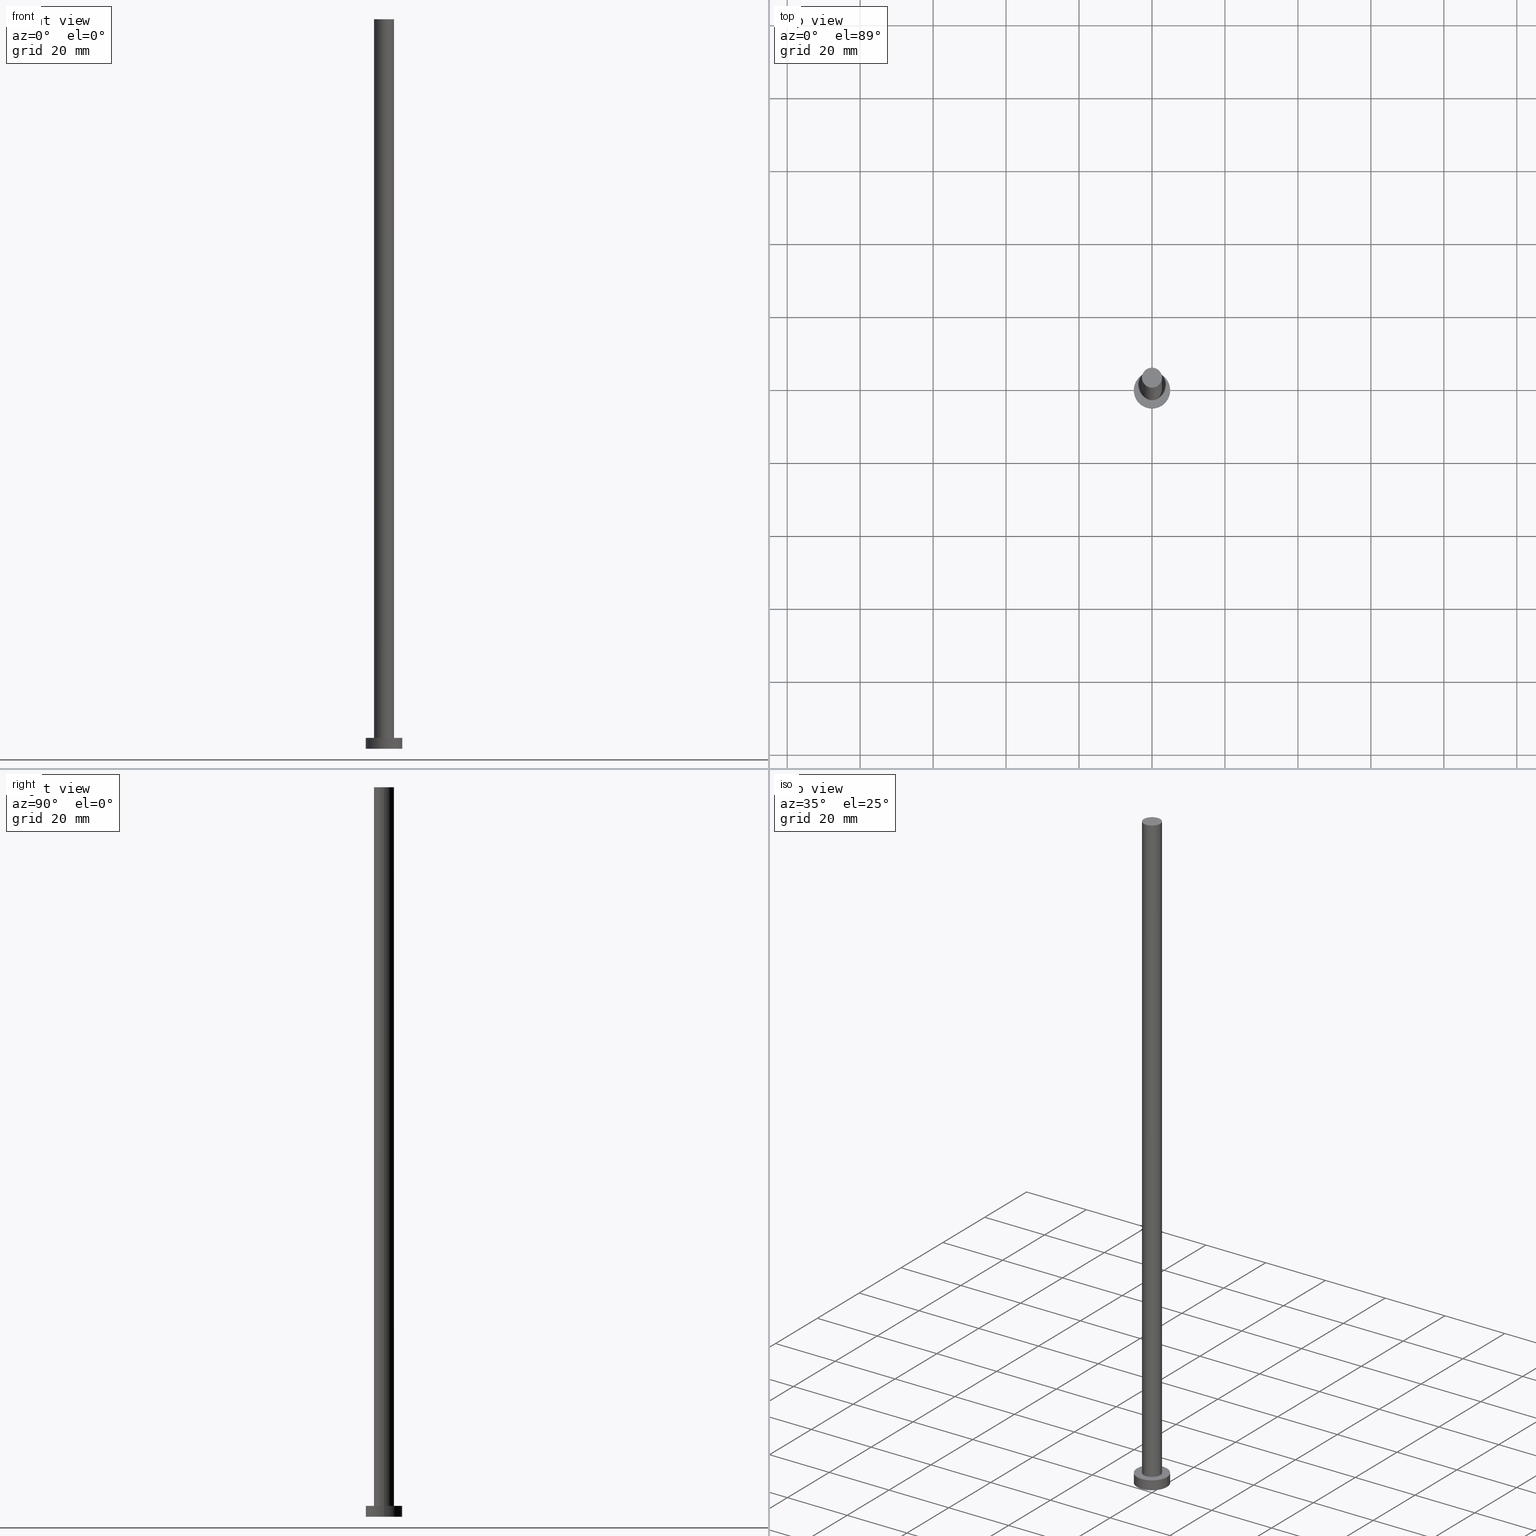
[diagram: canonical four-view strip — front | top / right | iso, engineering-drawing reading convention]
A machine part, canonical four-view strip (front | top / right | iso — engineering-drawing reading convention). The complete STEP part file that produces these views, byte-faithful:
ISO-10303-21;
HEADER;
FILE_DESCRIPTION (( 'STEP AP203' ),
    '1' );
FILE_NAME ('29d3.STEP',
    '2023-02-13T14:33:51',
    ( '' ),
    ( '' ),
    'SwSTEP 2.0',
    'SolidWorks 2019',
    '' );
FILE_SCHEMA (( 'CONFIG_CONTROL_DESIGN' ));
ENDSEC;

DATA;
#1 = AXIS2_PLACEMENT_3D ( 'NONE', #63, #211, #60 ) ;
#2 = EDGE_CURVE ( 'NONE', #146, #50, #151, .T. ) ;
#3 = CALENDAR_DATE ( 2023, 13, 2 ) ;
#4 = MECHANICAL_CONTEXT ( 'NONE', #82, 'mechanical' ) ;
#5 = CC_DESIGN_PERSON_AND_ORGANIZATION_ASSIGNMENT ( #142, #122, ( #239 ) ) ;
#6 = PERSON_AND_ORGANIZATION_ROLE ( 'design_owner' ) ;
#7 = CALENDAR_DATE ( 2023, 13, 2 ) ;
#8 = ADVANCED_FACE ( 'NONE', ( #130 ), #125, .F. ) ;
#9 = ORIENTED_EDGE ( 'NONE', *, *, #134, .T. ) ;
#10 = CARTESIAN_POINT ( 'NONE',  ( 5.000000000000000000, 6.123233995736766282E-16, 0.000000000000000000 ) ) ;
#11 = PERSON_AND_ORGANIZATION ( #64, #174 ) ;
#12 = EDGE_LOOP ( 'NONE', ( #9, #244 ) ) ;
#13 = VERTEX_POINT ( 'NONE', #36 ) ;
#14 = CC_DESIGN_APPROVAL ( #240, ( #53 ) ) ;
#15 = DATE_AND_TIME ( #248, #124 ) ;
#16 = ORIENTED_EDGE ( 'NONE', *, *, #134, .F. ) ;
#17 = CARTESIAN_POINT ( 'NONE',  ( 0.000000000000000000, 0.000000000000000000, 3.000000000000000000 ) ) ;
#18 = FACE_BOUND ( 'NONE', #171, .T. ) ;
#19 = ADVANCED_FACE ( 'NONE', ( #183 ), #202, .T. ) ;
#20 = APPROVAL_PERSON_ORGANIZATION ( #241, #228, #237 ) ;
#21 = DIRECTION ( 'NONE',  ( 0.000000000000000000, 0.000000000000000000, 1.000000000000000000 ) ) ;
#22 = LINE ( 'NONE', #212, #145 ) ;
#23 = DATE_AND_TIME ( #3, #62 ) ;
#24 = PERSON_AND_ORGANIZATION_ROLE ( 'classification_officer' ) ;
#25 = AXIS2_PLACEMENT_3D ( 'NONE', #17, #90, #235 ) ;
#26 = DATE_AND_TIME ( #48, #187 ) ;
#27 = ADVANCED_FACE ( 'NONE', ( #175 ), #73, .T. ) ;
#28 = LOCAL_TIME ( 15, 33, 51.00000000000000000, #66 ) ;
#29 = DIRECTION ( 'NONE',  ( 0.000000000000000000, 0.000000000000000000, 1.000000000000000000 ) ) ;
#30 = UNCERTAINTY_MEASURE_WITH_UNIT (LENGTH_MEASURE( 1.000000000000000082E-05 ), #217, 'distance_accuracy_value', 'NONE');
#31 = ORIENTED_EDGE ( 'NONE', *, *, #120, .F. ) ;
#32 = ORIENTED_EDGE ( 'NONE', *, *, #2, .F. ) ;
#33 = CC_DESIGN_DATE_AND_TIME_ASSIGNMENT ( #26, #104, ( #53 ) ) ;
#34 = DIRECTION ( 'NONE',  ( 0.000000000000000000, 0.000000000000000000, 1.000000000000000000 ) ) ;
#35 = ORIENTED_EDGE ( 'NONE', *, *, #221, .F. ) ;
#36 = CARTESIAN_POINT ( 'NONE',  ( -2.750000000000000000, 0.000000000000000000, 3.000000000000000000 ) ) ;
#37 = VECTOR ( 'NONE', #95, 1000.000000000000000 ) ;
#38 = LINE ( 'NONE', #193, #165 ) ;
#39 = AXIS2_PLACEMENT_3D ( 'NONE', #97, #117, #158 ) ;
#40 = MANIFOLD_SOLID_BREP ( 'P�idat vysunut�m3', #140 ) ;
#41 = DIRECTION ( 'NONE',  ( -0.000000000000000000, -0.000000000000000000, -1.000000000000000000 ) ) ;
#42 = DIRECTION ( 'NONE',  ( 1.000000000000000000, 0.000000000000000000, 0.000000000000000000 ) ) ;
#43 = DIRECTION ( 'NONE',  ( 1.000000000000000000, 0.000000000000000000, 0.000000000000000000 ) ) ;
#44 = PERSON_AND_ORGANIZATION ( #64, #174 ) ;
#45 = VECTOR ( 'NONE', #72, 1000.000000000000000 ) ;
#46 = APPROVAL_STATUS ( 'not_yet_approved' ) ;
#47 = COORDINATED_UNIVERSAL_TIME_OFFSET ( 1, 0, .AHEAD. ) ;
#48 = CALENDAR_DATE ( 2023, 13, 2 ) ;
#49 = DATE_AND_TIME ( #7, #28 ) ;
#50 = VERTEX_POINT ( 'NONE', #10 ) ;
#51 = DIRECTION ( 'NONE',  ( 1.000000000000000000, 0.000000000000000000, -0.000000000000000000 ) ) ;
#52 = VERTEX_POINT ( 'NONE', #110 ) ;
#53 = SECURITY_CLASSIFICATION ( '', '', #196 ) ;
#54 = ORIENTED_EDGE ( 'NONE', *, *, #120, .T. ) ;
#55 = CARTESIAN_POINT ( 'NONE',  ( 5.000000000000000000, 6.123233995736766282E-16, 3.000000000000000000 ) ) ;
#56 = LINE ( 'NONE', #230, #37 ) ;
#57 = AXIS2_PLACEMENT_3D ( 'NONE', #118, #21, #189 ) ;
#58 = CARTESIAN_POINT ( 'NONE',  ( -2.750000000000000000, 0.000000000000000000, 200.0000000000000000 ) ) ;
#59 = DIRECTION ( 'NONE',  ( 1.000000000000000000, 0.000000000000000000, 0.000000000000000000 ) ) ;
#60 = DIRECTION ( 'NONE',  ( -1.000000000000000000, 0.000000000000000000, 0.000000000000000000 ) ) ;
#61 = CIRCLE ( 'NONE', #112, 2.750000000000000000 ) ;
#62 = LOCAL_TIME ( 15, 33, 51.00000000000000000, #47 ) ;
#63 = CARTESIAN_POINT ( 'NONE',  ( 0.000000000000000000, 0.000000000000000000, 3.000000000000000000 ) ) ;
#64 = PERSON ( 'NEUR�EN�', 'NEUR�EN�', 'NEUR�EN�', ('NEUR�EN�'), ('NEUR�EN�'), ('NEUR�EN�') ) ;
#65 = COORDINATED_UNIVERSAL_TIME_OFFSET ( 1, 0, .AHEAD. ) ;
#66 = COORDINATED_UNIVERSAL_TIME_OFFSET ( 1, 0, .AHEAD. ) ;
#67 = PRODUCT ( '29d3', '29d3', '', ( #4 ) ) ;
#68 = CALENDAR_DATE ( 2023, 13, 2 ) ;
#69 = EDGE_CURVE ( 'NONE', #52, #87, #135, .T. ) ;
#70 = ORIENTED_EDGE ( 'NONE', *, *, #209, .F. ) ;
#71 = CARTESIAN_POINT ( 'NONE',  ( 0.000000000000000000, 0.000000000000000000, 200.0000000000000000 ) ) ;
#72 = DIRECTION ( 'NONE',  ( -0.000000000000000000, -0.000000000000000000, -1.000000000000000000 ) ) ;
#73 = CYLINDRICAL_SURFACE ( 'NONE', #245, 2.750000000000000000 ) ;
#74 = VERTEX_POINT ( 'NONE', #176 ) ;
#75 = FACE_OUTER_BOUND ( 'NONE', #12, .T. ) ;
#76 = CARTESIAN_POINT ( 'NONE',  ( 0.000000000000000000, 0.000000000000000000, 200.0000000000000000 ) ) ;
#77 = AXIS2_PLACEMENT_3D ( 'NONE', #76, #133, #78 ) ;
#78 = DIRECTION ( 'NONE',  ( -1.000000000000000000, 0.000000000000000000, 0.000000000000000000 ) ) ;
#79 = CARTESIAN_POINT ( 'NONE',  ( 0.000000000000000000, 0.000000000000000000, 200.0000000000000000 ) ) ;
#80 = PERSON_AND_ORGANIZATION ( #64, #174 ) ;
#81 = PERSON_AND_ORGANIZATION ( #64, #174 ) ;
#82 = APPLICATION_CONTEXT ( 'configuration controlled 3d designs of mechanical parts and assemblies' ) ;
#83 = ORIENTED_EDGE ( 'NONE', *, *, #69, .F. ) ;
#84 = EDGE_LOOP ( 'NONE', ( #203, #127, #227, #126 ) ) ;
#85 = ORIENTED_EDGE ( 'NONE', *, *, #197, .T. ) ;
#86 = ADVANCED_FACE ( 'NONE', ( #18, #75 ), #159, .T. ) ;
#87 = VERTEX_POINT ( 'NONE', #58 ) ;
#88 = SHAPE_DEFINITION_REPRESENTATION ( #220, #213 ) ;
#89 = ORIENTED_EDGE ( 'NONE', *, *, #221, .T. ) ;
#90 = DIRECTION ( 'NONE',  ( 0.000000000000000000, 0.000000000000000000, 1.000000000000000000 ) ) ;
#91 = APPROVAL_DATE_TIME ( #15, #240 ) ;
#92 = APPROVAL ( #46, 'NEUR�EN�' ) ;
#93 = FACE_OUTER_BOUND ( 'NONE', #168, .T. ) ;
#94 = AXIS2_PLACEMENT_3D ( 'NONE', #102, #29, #162 ) ;
#95 = DIRECTION ( 'NONE',  ( -0.000000000000000000, -0.000000000000000000, -1.000000000000000000 ) ) ;
#96 = APPROVAL_ROLE ( '' ) ;
#97 = CARTESIAN_POINT ( 'NONE',  ( 0.000000000000000000, 0.000000000000000000, 3.000000000000000000 ) ) ;
#98 = DIRECTION ( 'NONE',  ( 0.000000000000000000, 0.000000000000000000, 1.000000000000000000 ) ) ;
#99 = AXIS2_PLACEMENT_3D ( 'NONE', #249, #177, #253 ) ;
#100 = DATE_TIME_ROLE ( 'creation_date' ) ;
#101 = ADVANCED_FACE ( 'NONE', ( #93 ), #250, .T. ) ;
#102 = CARTESIAN_POINT ( 'NONE',  ( 0.000000000000000000, 0.000000000000000000, 0.000000000000000000 ) ) ;
#103 = COORDINATED_UNIVERSAL_TIME_OFFSET ( 1, 0, .AHEAD. ) ;
#104 = DATE_TIME_ROLE ( 'classification_date' ) ;
#105 = DIRECTION ( 'NONE',  ( -0.000000000000000000, -0.000000000000000000, -1.000000000000000000 ) ) ;
#106 = CIRCLE ( 'NONE', #163, 5.000000000000000000 ) ;
#107 = AXIS2_PLACEMENT_3D ( 'NONE', #191, #98, #179 ) ;
#108 = EDGE_CURVE ( 'NONE', #87, #52, #61, .T. ) ;
#109 = VERTEX_POINT ( 'NONE', #153 ) ;
#110 = CARTESIAN_POINT ( 'NONE',  ( 2.750000000000000000, 3.367778697655221012E-16, 200.0000000000000000 ) ) ;
#111 = CC_DESIGN_PERSON_AND_ORGANIZATION_ASSIGNMENT ( #80, #195, ( #144 ) ) ;
#112 = AXIS2_PLACEMENT_3D ( 'NONE', #79, #115, #42 ) ;
#113 = DIRECTION ( 'NONE',  ( 0.000000000000000000, 0.000000000000000000, 1.000000000000000000 ) ) ;
#114 = CIRCLE ( 'NONE', #39, 2.750000000000000000 ) ;
#115 = DIRECTION ( 'NONE',  ( 0.000000000000000000, 0.000000000000000000, 1.000000000000000000 ) ) ;
#116 = DIRECTION ( 'NONE',  ( 0.000000000000000000, 0.000000000000000000, 1.000000000000000000 ) ) ;
#117 = DIRECTION ( 'NONE',  ( 0.000000000000000000, 0.000000000000000000, 1.000000000000000000 ) ) ;
#118 = CARTESIAN_POINT ( 'NONE',  ( 0.000000000000000000, 0.000000000000000000, 0.000000000000000000 ) ) ;
#119 = APPROVAL_ROLE ( '' ) ;
#120 = EDGE_CURVE ( 'NONE', #52, #109, #56, .T. ) ;
#121 = PERSON_AND_ORGANIZATION ( #64, #174 ) ;
#122 = PERSON_AND_ORGANIZATION_ROLE ( 'creator' ) ;
#123 =( NAMED_UNIT ( * ) PLANE_ANGLE_UNIT ( ) SI_UNIT ( $, .RADIAN. ) );
#124 = LOCAL_TIME ( 15, 33, 51.00000000000000000, #210 ) ;
#125 = PLANE ( 'NONE',  #215 ) ;
#126 = ORIENTED_EDGE ( 'NONE', *, *, #156, .F. ) ;
#127 = ORIENTED_EDGE ( 'NONE', *, *, #2, .T. ) ;
#128 = CIRCLE ( 'NONE', #57, 5.000000000000000000 ) ;
#129 = CARTESIAN_POINT ( 'NONE',  ( 0.000000000000000000, 0.000000000000000000, 0.000000000000000000 ) ) ;
#130 = FACE_OUTER_BOUND ( 'NONE', #229, .T. ) ;
#131 = DIRECTION ( 'NONE',  ( -0.000000000000000000, -0.000000000000000000, -1.000000000000000000 ) ) ;
#132 = CYLINDRICAL_SURFACE ( 'NONE', #1, 5.000000000000000000 ) ;
#133 = DIRECTION ( 'NONE',  ( -0.000000000000000000, -0.000000000000000000, -1.000000000000000000 ) ) ;
#134 = EDGE_CURVE ( 'NONE', #243, #146, #172, .T. ) ;
#135 = CIRCLE ( 'NONE', #182, 2.750000000000000000 ) ;
#136 = DIRECTION ( 'NONE',  ( -0.000000000000000000, -0.000000000000000000, -1.000000000000000000 ) ) ;
#137 = APPROVAL_PERSON_ORGANIZATION ( #81, #92, #119 ) ;
#138 = ADVANCED_FACE ( 'NONE', ( #208 ), #194, .T. ) ;
#139 = APPROVAL_DATE_TIME ( #143, #228 ) ;
#140 = CLOSED_SHELL ( 'NONE', ( #101, #178, #138, #86, #8, #27, #19 ) ) ;
#141 = AXIS2_PLACEMENT_3D ( 'NONE', #216, #116, #43 ) ;
#142 = PERSON_AND_ORGANIZATION ( #64, #174 ) ;
#143 = DATE_AND_TIME ( #68, #200 ) ;
#144 = PRODUCT_DEFINITION ( 'NEZN�M�', '', #239, #164 ) ;
#145 = VECTOR ( 'NONE', #41, 1000.000000000000000 ) ;
#146 = VERTEX_POINT ( 'NONE', #233 ) ;
#147 = DIRECTION ( 'NONE',  ( -1.000000000000000000, 0.000000000000000000, 0.000000000000000000 ) ) ;
#148 = EDGE_LOOP ( 'NONE', ( #31, #205, #85, #225 ) ) ;
#149 = PRODUCT_RELATED_PRODUCT_CATEGORY ( 'detail', '', ( #67 ) ) ;
#150 = CARTESIAN_POINT ( 'NONE',  ( 0.000000000000000000, 0.000000000000000000, 200.0000000000000000 ) ) ;
#151 = LINE ( 'NONE', #55, #45 ) ;
#152 = CC_DESIGN_PERSON_AND_ORGANIZATION_ASSIGNMENT ( #223, #222, ( #239 ) ) ;
#153 = CARTESIAN_POINT ( 'NONE',  ( 2.750000000000000000, 3.367778697655221012E-16, 3.000000000000000000 ) ) ;
#154 = CARTESIAN_POINT ( 'NONE',  ( 0.000000000000000000, 0.000000000000000000, 3.000000000000000000 ) ) ;
#155 = DIRECTION ( 'NONE',  ( 1.000000000000000000, 0.000000000000000000, 0.000000000000000000 ) ) ;
#156 = EDGE_CURVE ( 'NONE', #243, #74, #38, .T. ) ;
#157 = APPROVAL_STATUS ( 'not_yet_approved' ) ;
#158 = DIRECTION ( 'NONE',  ( 1.000000000000000000, 0.000000000000000000, 0.000000000000000000 ) ) ;
#159 = PLANE ( 'NONE',  #25 ) ;
#160 = CC_DESIGN_SECURITY_CLASSIFICATION ( #53, ( #239 ) ) ;
#161 = APPROVAL_STATUS ( 'not_yet_approved' ) ;
#162 = DIRECTION ( 'NONE',  ( 1.000000000000000000, 0.000000000000000000, 0.000000000000000000 ) ) ;
#163 = AXIS2_PLACEMENT_3D ( 'NONE', #188, #234, #59 ) ;
#164 = DESIGN_CONTEXT ( 'detailed design', #214, 'design' ) ;
#165 = VECTOR ( 'NONE', #136, 1000.000000000000000 ) ;
#166 = EDGE_CURVE ( 'NONE', #50, #74, #106, .T. ) ;
#167 = CIRCLE ( 'NONE', #107, 2.750000000000000000 ) ;
#168 = EDGE_LOOP ( 'NONE', ( #83, #54, #89, #206 ) ) ;
#169 = ORIENTED_EDGE ( 'NONE', *, *, #108, .T. ) ;
#170 = CC_DESIGN_PERSON_AND_ORGANIZATION_ASSIGNMENT ( #121, #24, ( #53 ) ) ;
#171 = EDGE_LOOP ( 'NONE', ( #70, #35 ) ) ;
#172 = CIRCLE ( 'NONE', #99, 5.000000000000000000 ) ;
#173 = ORIENTED_EDGE ( 'NONE', *, *, #69, .T. ) ;
#174 = ORGANIZATION ( 'NEUR�EN�', 'NEUR�EN�', '' ) ;
#175 = FACE_OUTER_BOUND ( 'NONE', #148, .T. ) ;
#176 = CARTESIAN_POINT ( 'NONE',  ( -5.000000000000000000, 0.000000000000000000, 0.000000000000000000 ) ) ;
#177 = DIRECTION ( 'NONE',  ( 0.000000000000000000, 0.000000000000000000, 1.000000000000000000 ) ) ;
#178 = ADVANCED_FACE ( 'NONE', ( #251 ), #132, .T. ) ;
#179 = DIRECTION ( 'NONE',  ( 1.000000000000000000, 0.000000000000000000, 0.000000000000000000 ) ) ;
#180 = DIRECTION ( 'NONE',  ( 0.000000000000000000, 0.000000000000000000, 1.000000000000000000 ) ) ;
#181 = ORIENTED_EDGE ( 'NONE', *, *, #166, .F. ) ;
#182 = AXIS2_PLACEMENT_3D ( 'NONE', #185, #180, #155 ) ;
#183 = FACE_OUTER_BOUND ( 'NONE', #247, .T. ) ;
#184 = ORIENTED_EDGE ( 'NONE', *, *, #231, .T. ) ;
#185 = CARTESIAN_POINT ( 'NONE',  ( 0.000000000000000000, 0.000000000000000000, 200.0000000000000000 ) ) ;
#186 = DIRECTION ( 'NONE',  ( 1.000000000000000000, 0.000000000000000000, -0.000000000000000000 ) ) ;
#187 = LOCAL_TIME ( 15, 33, 51.00000000000000000, #103 ) ;
#188 = CARTESIAN_POINT ( 'NONE',  ( 0.000000000000000000, 0.000000000000000000, 0.000000000000000000 ) ) ;
#189 = DIRECTION ( 'NONE',  ( 1.000000000000000000, 0.000000000000000000, 0.000000000000000000 ) ) ;
#190 = AXIS2_PLACEMENT_3D ( 'NONE', #71, #113, #186 ) ;
#191 = CARTESIAN_POINT ( 'NONE',  ( 0.000000000000000000, 0.000000000000000000, 3.000000000000000000 ) ) ;
#192 = APPROVAL_PERSON_ORGANIZATION ( #11, #240, #96 ) ;
#193 = CARTESIAN_POINT ( 'NONE',  ( -5.000000000000000000, 0.000000000000000000, 3.000000000000000000 ) ) ;
#194 = CYLINDRICAL_SURFACE ( 'NONE', #218, 5.000000000000000000 ) ;
#195 = PERSON_AND_ORGANIZATION_ROLE ( 'creator' ) ;
#196 = SECURITY_CLASSIFICATION_LEVEL ( 'unclassified' ) ;
#197 = EDGE_CURVE ( 'NONE', #87, #13, #22, .T. ) ;
#198 = APPLICATION_PROTOCOL_DEFINITION ( 'international standard', 'config_control_design', 1994, #214 ) ;
#199 = APPLICATION_PROTOCOL_DEFINITION ( 'international standard', 'config_control_design', 1994, #82 ) ;
#200 = LOCAL_TIME ( 15, 33, 51.00000000000000000, #65 ) ;
#201 = APPROVAL_DATE_TIME ( #49, #92 ) ;
#202 = PLANE ( 'NONE',  #190 ) ;
#203 = ORIENTED_EDGE ( 'NONE', *, *, #224, .F. ) ;
#204 = CC_DESIGN_APPROVAL ( #92, ( #144 ) ) ;
#205 = ORIENTED_EDGE ( 'NONE', *, *, #108, .F. ) ;
#206 = ORIENTED_EDGE ( 'NONE', *, *, #197, .F. ) ;
#207 = EDGE_LOOP ( 'NONE', ( #32, #16, #242, #184 ) ) ;
#208 = FACE_OUTER_BOUND ( 'NONE', #207, .T. ) ;
#209 = EDGE_CURVE ( 'NONE', #13, #109, #114, .T. ) ;
#210 = COORDINATED_UNIVERSAL_TIME_OFFSET ( 1, 0, .AHEAD. ) ;
#211 = DIRECTION ( 'NONE',  ( -0.000000000000000000, -0.000000000000000000, -1.000000000000000000 ) ) ;
#212 = CARTESIAN_POINT ( 'NONE',  ( -2.750000000000000000, 0.000000000000000000, 200.0000000000000000 ) ) ;
#213 = ADVANCED_BREP_SHAPE_REPRESENTATION ( '29d3', ( #40, #94 ), #246 ) ;
#214 = APPLICATION_CONTEXT ( 'configuration controlled 3d designs of mechanical parts and assemblies' ) ;
#215 = AXIS2_PLACEMENT_3D ( 'NONE', #129, #34, #51 ) ;
#216 = CARTESIAN_POINT ( 'NONE',  ( 0.000000000000000000, 0.000000000000000000, 3.000000000000000000 ) ) ;
#217 =( LENGTH_UNIT ( ) NAMED_UNIT ( * ) SI_UNIT ( .MILLI., .METRE. ) );
#218 = AXIS2_PLACEMENT_3D ( 'NONE', #154, #131, #232 ) ;
#219 =( NAMED_UNIT ( * ) SI_UNIT ( $, .STERADIAN. ) SOLID_ANGLE_UNIT ( ) );
#220 = PRODUCT_DEFINITION_SHAPE ( 'NONE', 'NONE',  #144 ) ;
#221 = EDGE_CURVE ( 'NONE', #109, #13, #167, .T. ) ;
#222 = PERSON_AND_ORGANIZATION_ROLE ( 'design_supplier' ) ;
#223 = PERSON_AND_ORGANIZATION ( #64, #174 ) ;
#224 = EDGE_CURVE ( 'NONE', #146, #243, #252, .T. ) ;
#225 = ORIENTED_EDGE ( 'NONE', *, *, #209, .T. ) ;
#226 = ORIENTED_EDGE ( 'NONE', *, *, #231, .F. ) ;
#227 = ORIENTED_EDGE ( 'NONE', *, *, #166, .T. ) ;
#228 = APPROVAL ( #161, 'NEUR�EN�' ) ;
#229 = EDGE_LOOP ( 'NONE', ( #226, #181 ) ) ;
#230 = CARTESIAN_POINT ( 'NONE',  ( 2.750000000000000000, 3.367778697655221012E-16, 200.0000000000000000 ) ) ;
#231 = EDGE_CURVE ( 'NONE', #74, #50, #128, .T. ) ;
#232 = DIRECTION ( 'NONE',  ( -1.000000000000000000, 0.000000000000000000, 0.000000000000000000 ) ) ;
#233 = CARTESIAN_POINT ( 'NONE',  ( 5.000000000000000000, 6.123233995736766282E-16, 3.000000000000000000 ) ) ;
#234 = DIRECTION ( 'NONE',  ( 0.000000000000000000, 0.000000000000000000, 1.000000000000000000 ) ) ;
#235 = DIRECTION ( 'NONE',  ( 1.000000000000000000, 0.000000000000000000, -0.000000000000000000 ) ) ;
#236 = CC_DESIGN_APPROVAL ( #228, ( #239 ) ) ;
#237 = APPROVAL_ROLE ( '' ) ;
#238 = CC_DESIGN_DATE_AND_TIME_ASSIGNMENT ( #23, #100, ( #144 ) ) ;
#239 = PRODUCT_DEFINITION_FORMATION_WITH_SPECIFIED_SOURCE ( 'LIBOVOLN�', '', #67, .NOT_KNOWN. ) ;
#240 = APPROVAL ( #157, 'NEUR�EN�' ) ;
#241 = PERSON_AND_ORGANIZATION ( #64, #174 ) ;
#242 = ORIENTED_EDGE ( 'NONE', *, *, #156, .T. ) ;
#243 = VERTEX_POINT ( 'NONE', #255 ) ;
#244 = ORIENTED_EDGE ( 'NONE', *, *, #224, .T. ) ;
#245 = AXIS2_PLACEMENT_3D ( 'NONE', #150, #105, #147 ) ;
#246 =( GEOMETRIC_REPRESENTATION_CONTEXT ( 3 ) GLOBAL_UNCERTAINTY_ASSIGNED_CONTEXT ( ( #30 ) ) GLOBAL_UNIT_ASSIGNED_CONTEXT ( ( #217, #123, #219 ) ) REPRESENTATION_CONTEXT ( 'NONE', 'WORKASPACE' ) );
#247 = EDGE_LOOP ( 'NONE', ( #169, #173 ) ) ;
#248 = CALENDAR_DATE ( 2023, 13, 2 ) ;
#249 = CARTESIAN_POINT ( 'NONE',  ( 0.000000000000000000, 0.000000000000000000, 3.000000000000000000 ) ) ;
#250 = CYLINDRICAL_SURFACE ( 'NONE', #77, 2.750000000000000000 ) ;
#251 = FACE_OUTER_BOUND ( 'NONE', #84, .T. ) ;
#252 = CIRCLE ( 'NONE', #141, 5.000000000000000000 ) ;
#253 = DIRECTION ( 'NONE',  ( 1.000000000000000000, 0.000000000000000000, 0.000000000000000000 ) ) ;
#254 = CC_DESIGN_PERSON_AND_ORGANIZATION_ASSIGNMENT ( #44, #6, ( #67 ) ) ;
#255 = CARTESIAN_POINT ( 'NONE',  ( -5.000000000000000000, 0.000000000000000000, 3.000000000000000000 ) ) ;
ENDSEC;
END-ISO-10303-21;
